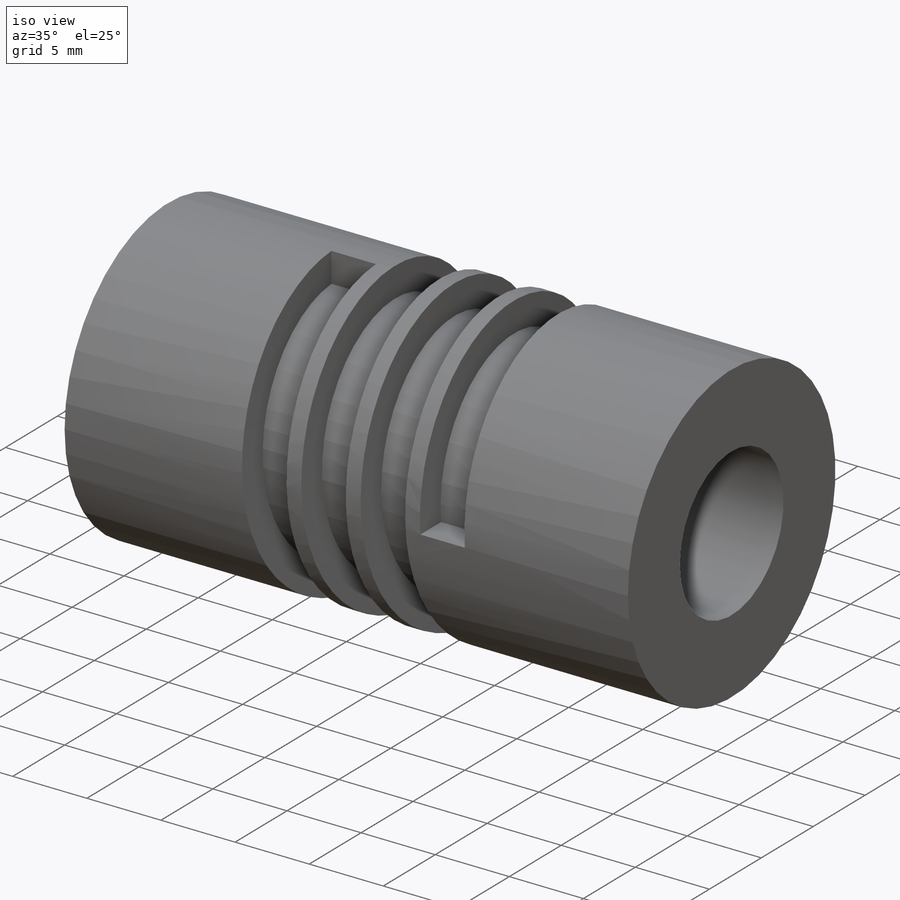
[diagram: iso view]
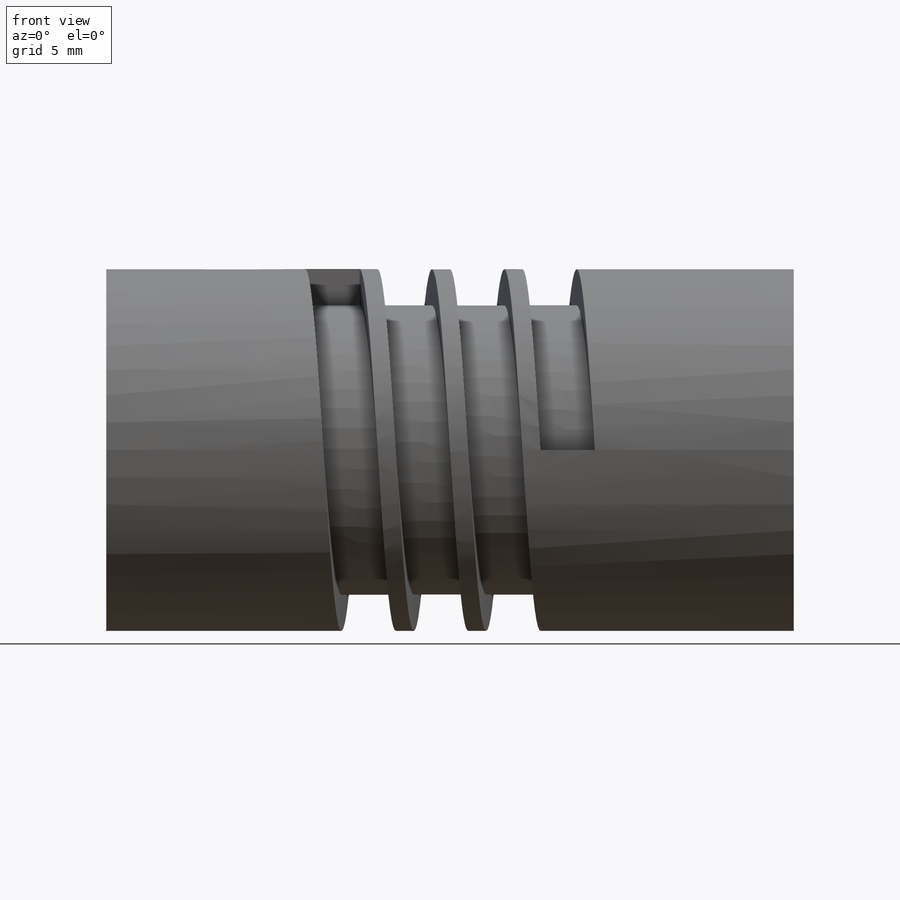
[diagram: front view]
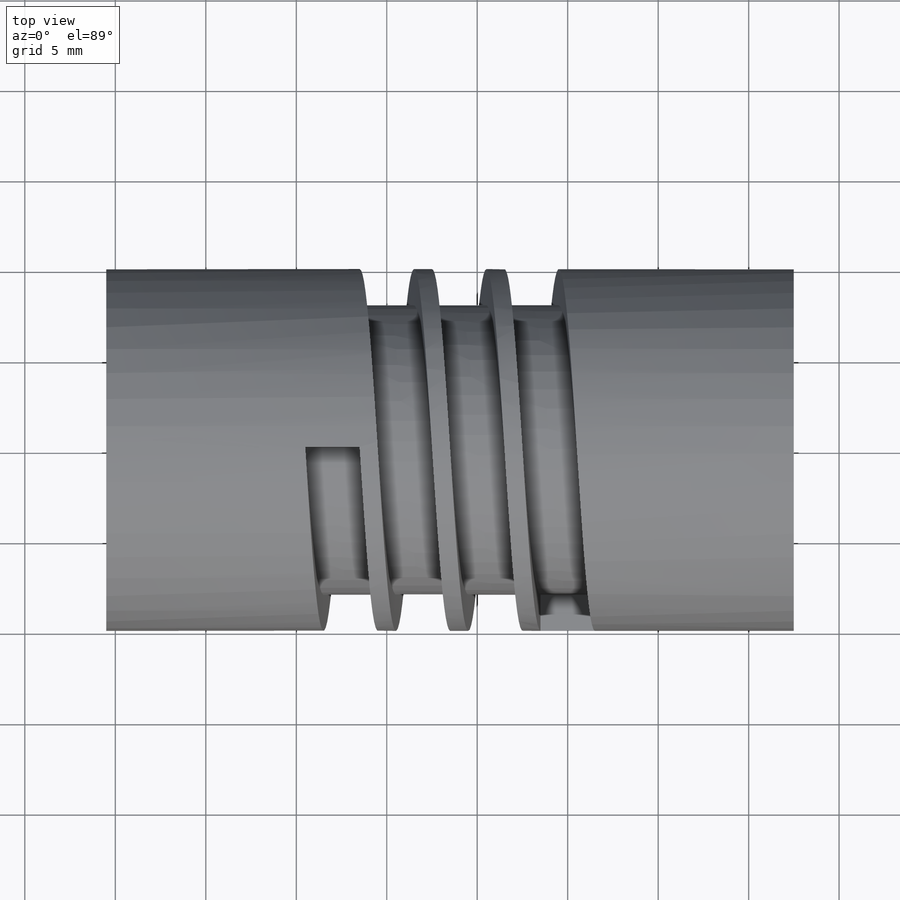
[diagram: top view]
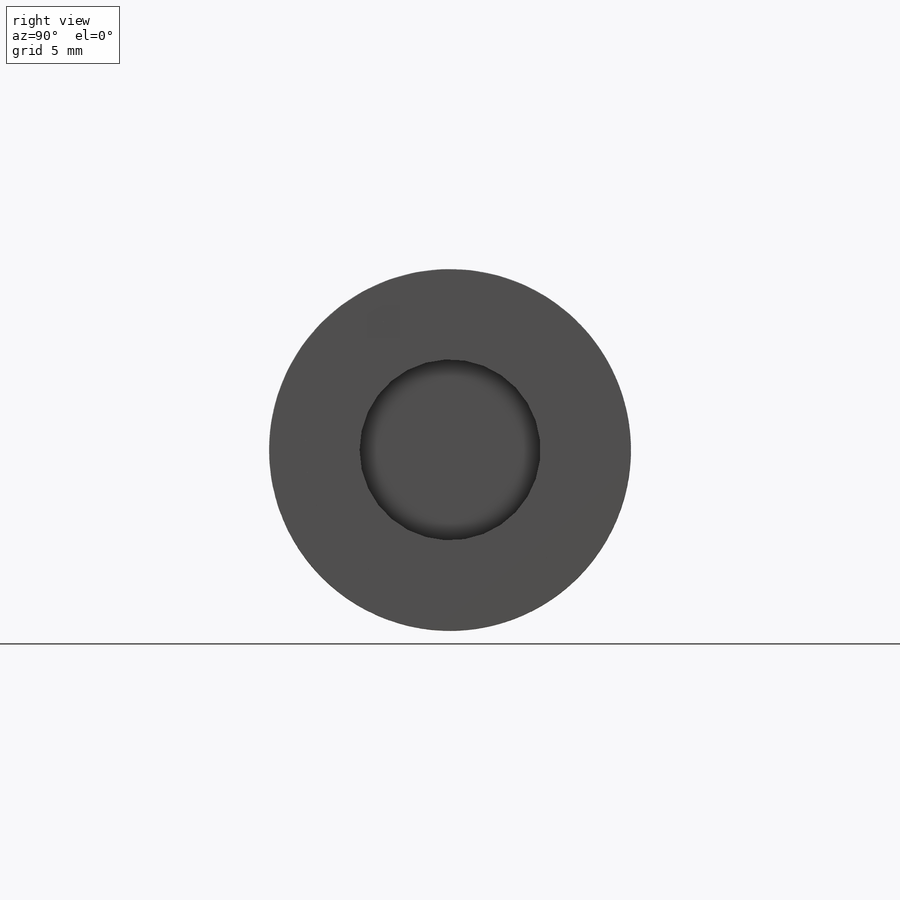
[diagram: right view]
SOLIDWORKS PART (.sldprt)
format: sldprt  version: not decoded by parser v0  size: 278,528 bytes
history: native  units: mm
features: sketch x3, material x1, revolve x1, plane x1, helix x1, sweep x1 (+13 scaffold rows collapsed)
feature tree (21):
  scaffold x13  (default folders/planes/origin — collapsed)
  material  "Material <not specified>"
  sketch  "Sketch1"  dims[c1.D1=5.0mm c1.D2=2.5mm c1.D3=10.0mm c1.D4=50.0mm c1.D5=15.0mm c1.D6=15.0mm c2.D4=10.0mm c2.D5=10.0mm c2.D6=38.0mm]
  revolve  "Revolve1"  Angle=360deg
  sketch  "Sketch2"  dims[c1.D1=3.0mm c1.D2=3.0mm c1.D3=2.0mm c2.D2=2.0mm]
  plane  "Plane1"  Offset=14mm
  sketch  "Sketch4"  dims[D1=20.0mm]
  helix  "Helix/Spiral1"  Pitch=13mm
  sweep  "Cut-Sweep1"
decode coverage: 5 of 6 modeling features carry decoded parameters
note: suppression state not decoded; provenance and decode notes live in map.json
